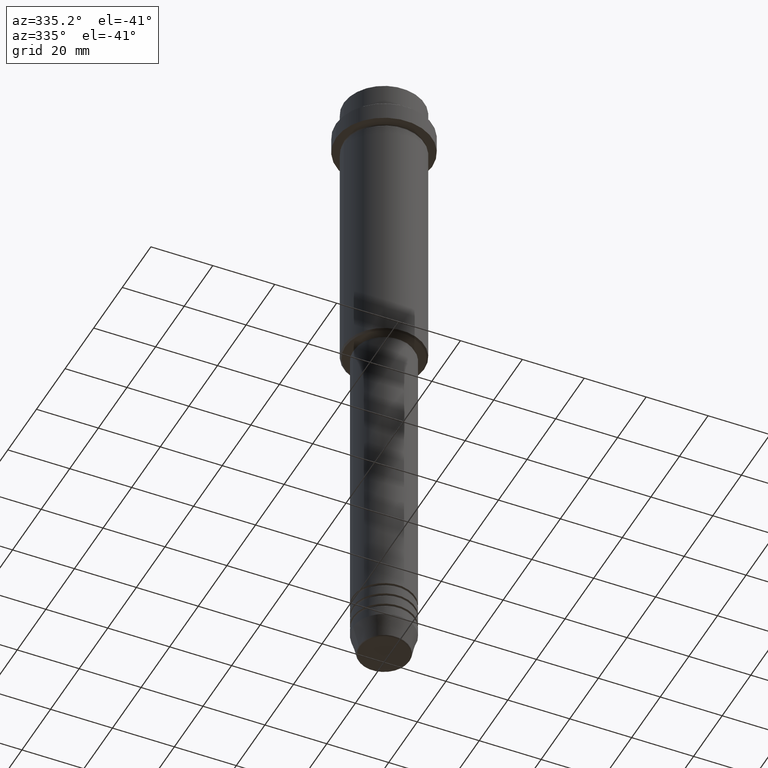
[diagram: clean part render]
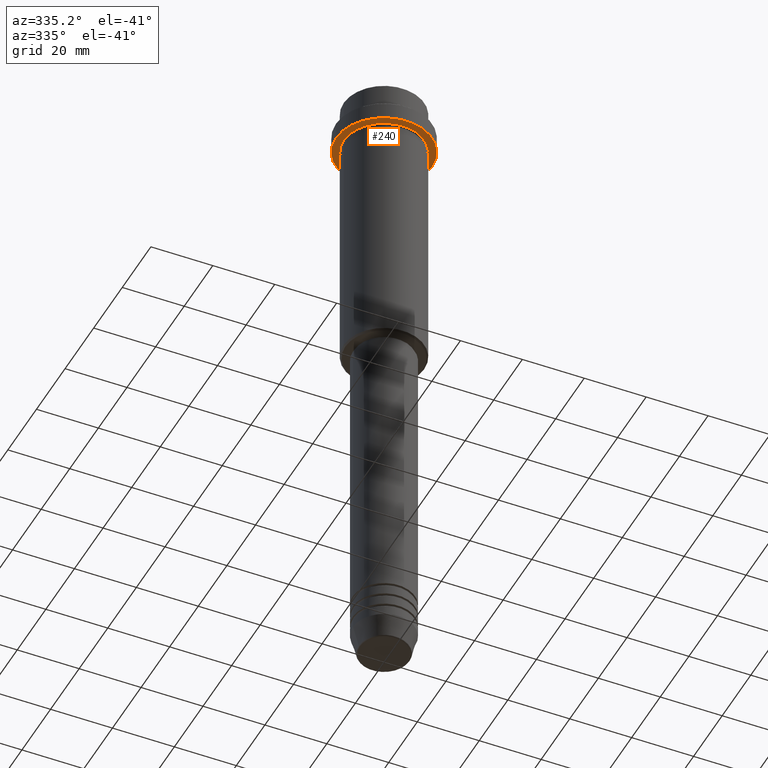
[diagram: same view with one face highlighted and labeled with its STEP entity id]
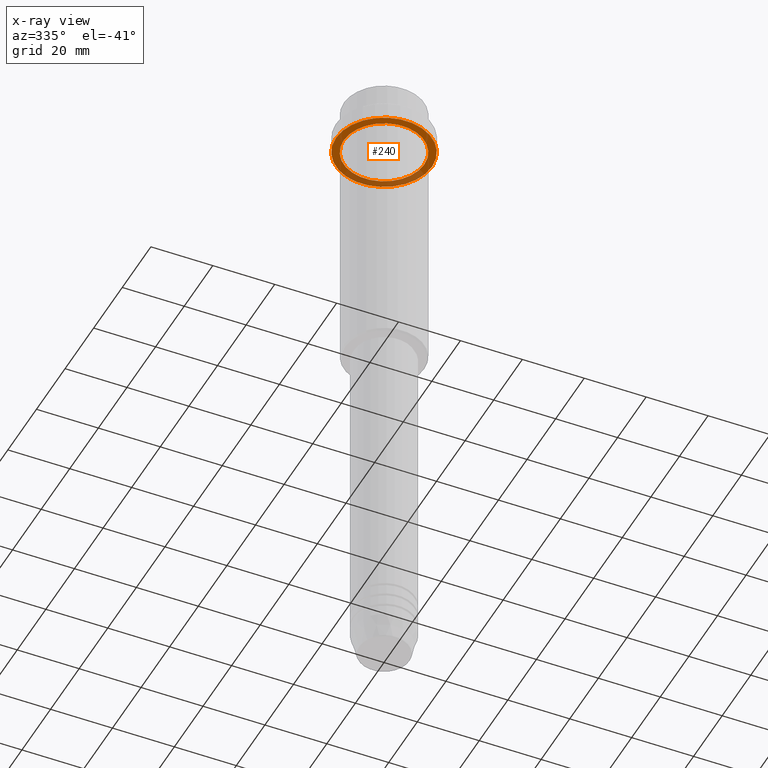
[diagram: x-ray of the same camera — body ghosted, the highlighted face saturated]
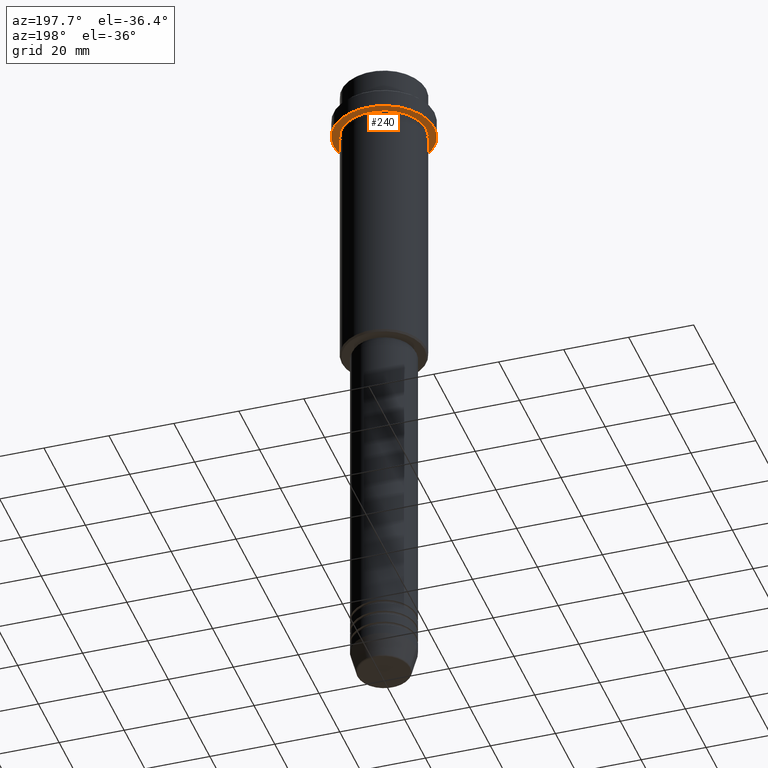
[diagram: same view with one face highlighted and labeled with its STEP entity id]
A machine part, auxiliary view. The second image highlights one B-rep face of the part: STEP entity #240.
The next image is the same camera in x-ray: the body ghosted, the highlighted face saturated — about 29% of this face is hidden behind the body in this view.
A second angle (auxiliary view) of the same face is appended — the face is thin or edge-on in the first view.
In plain terms, the highlighted planar face has unit normal (0, 0, -1).
Its self-contained STEP definition (entity closure, byte-faithful):
#94 = EDGE_LOOP ( 'NONE', ( #832, #1275 ) ) ;
#160 = DIRECTION ( 'NONE',  ( 0.000000000000000000, 0.000000000000000000, -1.000000000000000000 ) ) ;
#175 = CARTESIAN_POINT ( 'NONE',  ( -12.99999999999999467, 0.000000000000000000, -15.00000000000000000 ) ) ;
#182 = DIRECTION ( 'NONE',  ( -0.000000000000000000, -0.000000000000000000, 1.000000000000000000 ) ) ;
#240 = ADVANCED_FACE ( 'NONE', ( #1141, #1031 ), #1125, .T. ) ;
#263 = CARTESIAN_POINT ( 'NONE',  ( 0.000000000000000000, 0.000000000000000000, -15.00000000000000000 ) ) ;
#264 = ORIENTED_EDGE ( 'NONE', *, *, #1148, .T. ) ;
#348 = CIRCLE ( 'NONE', #579, 12.99999999999999467 ) ;
#363 = DIRECTION ( 'NONE',  ( -1.000000000000000000, 0.000000000000000000, 0.000000000000000000 ) ) ;
#385 = VERTEX_POINT ( 'NONE', #175 ) ;
#473 = CARTESIAN_POINT ( 'NONE',  ( 0.000000000000000000, 15.50000000000000000, -15.00000000000000000 ) ) ;
#476 = CARTESIAN_POINT ( 'NONE',  ( 12.99999999999999467, 1.592040838891558504E-15, -15.00000000000000000 ) ) ;
#579 = AXIS2_PLACEMENT_3D ( 'NONE', #862, #1196, #868 ) ;
#581 = AXIS2_PLACEMENT_3D ( 'NONE', #473, #160, #914 ) ;
#588 = VERTEX_POINT ( 'NONE', #1213 ) ;
#623 = DIRECTION ( 'NONE',  ( 1.000000000000000000, 0.000000000000000000, 0.000000000000000000 ) ) ;
#641 = DIRECTION ( 'NONE',  ( -0.000000000000000000, -0.000000000000000000, 1.000000000000000000 ) ) ;
#647 = CARTESIAN_POINT ( 'NONE',  ( -15.50000000000000000, 1.898202538678397557E-15, -15.00000000000000178 ) ) ;
#732 = CARTESIAN_POINT ( 'NONE',  ( 0.000000000000000000, 0.000000000000000000, -15.00000000000000178 ) ) ;
#809 = VERTEX_POINT ( 'NONE', #647 ) ;
#813 = CIRCLE ( 'NONE', #949, 15.50000000000000000 ) ;
#814 = AXIS2_PLACEMENT_3D ( 'NONE', #732, #182, #623 ) ;
#832 = ORIENTED_EDGE ( 'NONE', *, *, #916, .F. ) ;
#835 = AXIS2_PLACEMENT_3D ( 'NONE', #263, #1055, #363 ) ;
#842 = EDGE_CURVE ( 'NONE', #385, #1074, #348, .T. ) ;
#862 = CARTESIAN_POINT ( 'NONE',  ( 0.000000000000000000, 0.000000000000000000, -15.00000000000000000 ) ) ;
#868 = DIRECTION ( 'NONE',  ( -1.000000000000000000, 0.000000000000000000, 0.000000000000000000 ) ) ;
#914 = DIRECTION ( 'NONE',  ( -1.000000000000000000, 0.000000000000000000, -0.000000000000000000 ) ) ;
#916 = EDGE_CURVE ( 'NONE', #588, #809, #813, .T. ) ;
#949 = AXIS2_PLACEMENT_3D ( 'NONE', #962, #641, #1301 ) ;
#962 = CARTESIAN_POINT ( 'NONE',  ( 0.000000000000000000, 0.000000000000000000, -15.00000000000000178 ) ) ;
#1031 = FACE_OUTER_BOUND ( 'NONE', #94, .T. ) ;
#1055 = DIRECTION ( 'NONE',  ( -0.000000000000000000, -0.000000000000000000, 1.000000000000000000 ) ) ;
#1074 = VERTEX_POINT ( 'NONE', #476 ) ;
#1125 = PLANE ( 'NONE',  #581 ) ;
#1141 = FACE_BOUND ( 'NONE', #1223, .T. ) ;
#1148 = EDGE_CURVE ( 'NONE', #1074, #385, #1404, .T. ) ;
#1158 = CIRCLE ( 'NONE', #814, 15.50000000000000000 ) ;
#1196 = DIRECTION ( 'NONE',  ( -0.000000000000000000, -0.000000000000000000, 1.000000000000000000 ) ) ;
#1213 = CARTESIAN_POINT ( 'NONE',  ( 15.50000000000000000, 0.000000000000000000, -15.00000000000000178 ) ) ;
#1223 = EDGE_LOOP ( 'NONE', ( #1387, #264 ) ) ;
#1275 = ORIENTED_EDGE ( 'NONE', *, *, #1282, .F. ) ;
#1282 = EDGE_CURVE ( 'NONE', #809, #588, #1158, .T. ) ;
#1301 = DIRECTION ( 'NONE',  ( 1.000000000000000000, 0.000000000000000000, 0.000000000000000000 ) ) ;
#1387 = ORIENTED_EDGE ( 'NONE', *, *, #842, .T. ) ;
#1404 = CIRCLE ( 'NONE', #835, 12.99999999999999467 ) ;